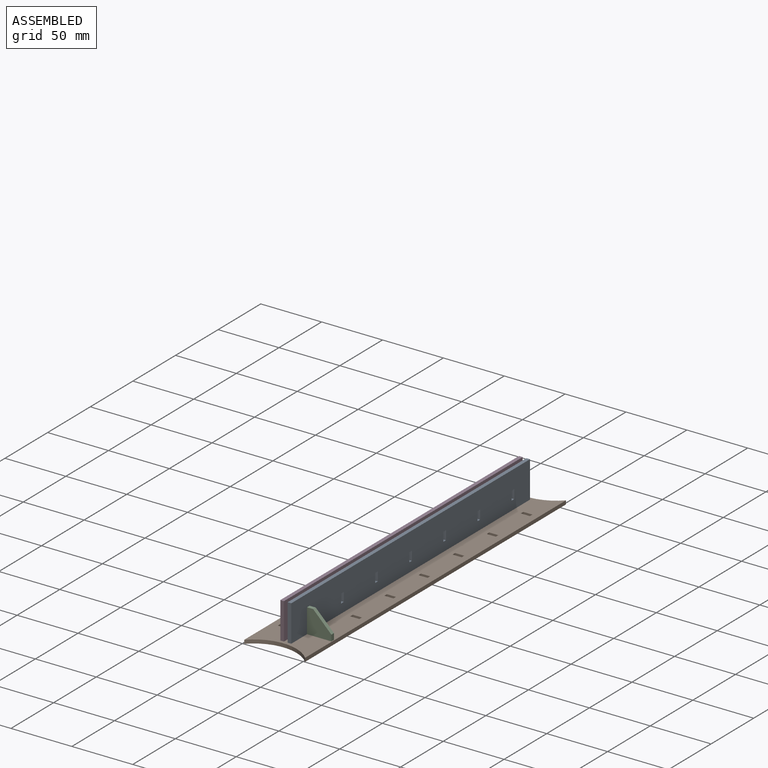
[diagram: assembled view]
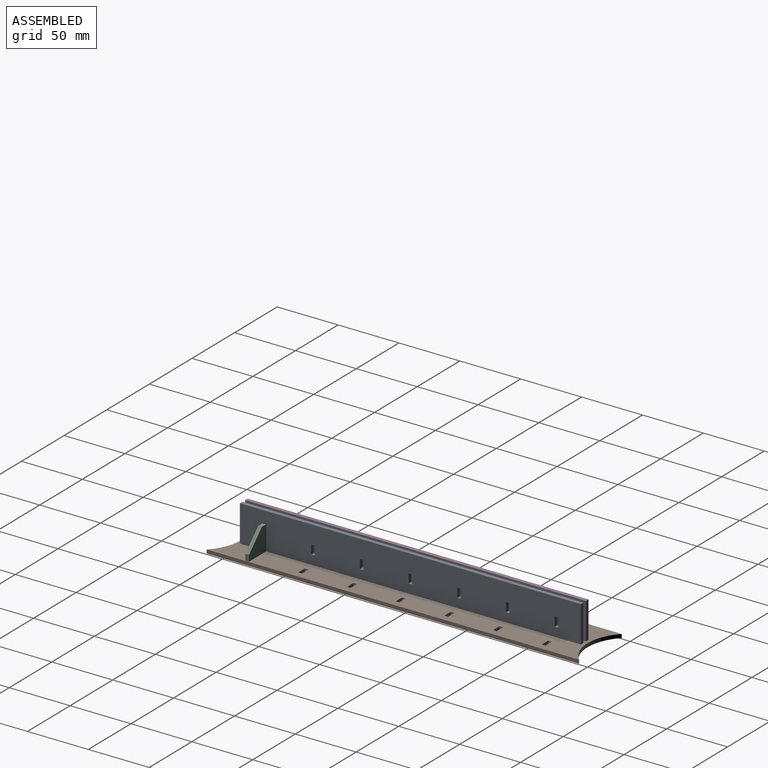
[diagram: assembled view, second angle]
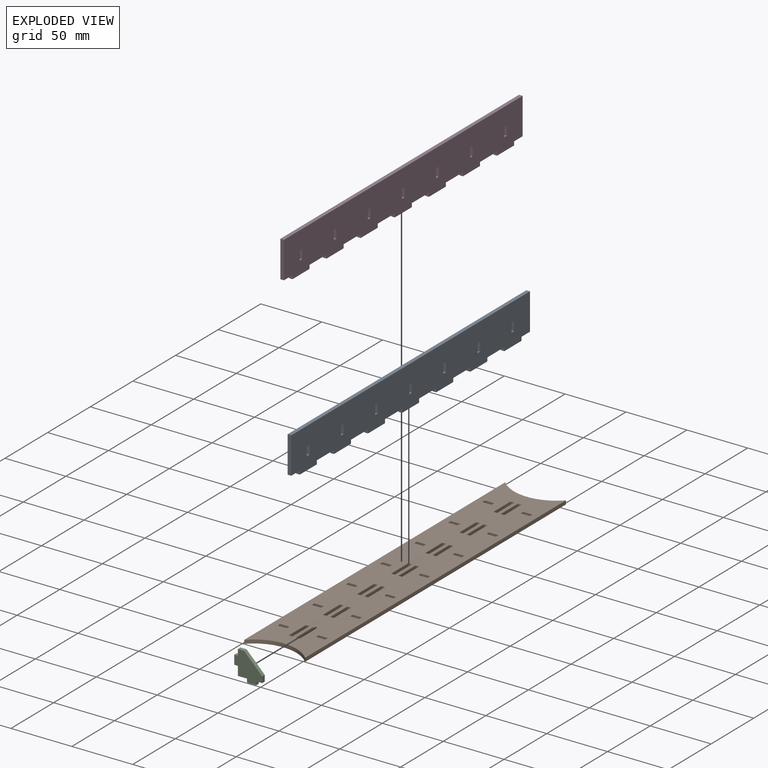
[diagram: exploded view]
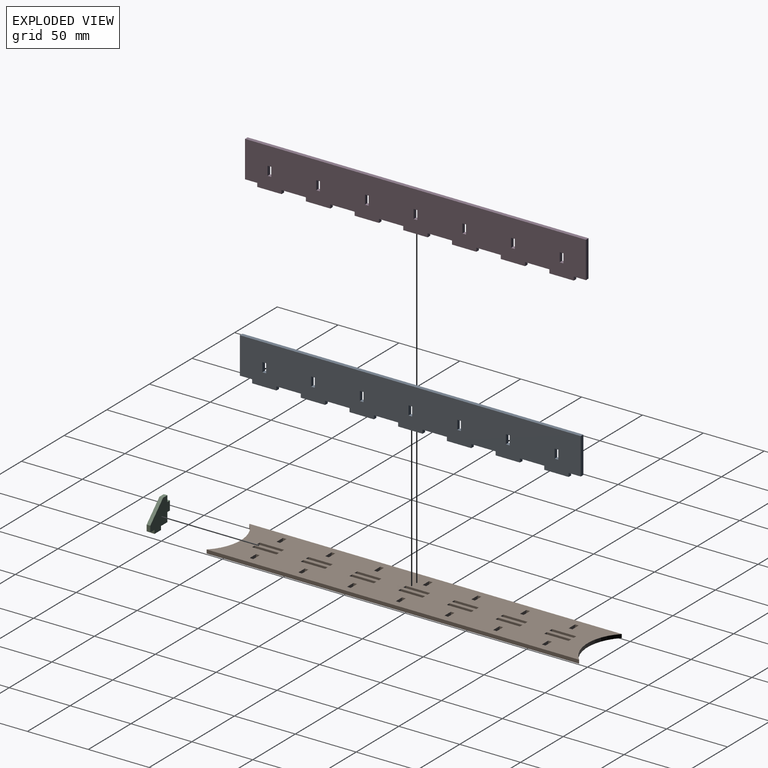
[diagram: exploded view, second angle]
ASSEMBLY  parts=4 mates=3
PART A: 62 faces, bbox 3x280x33 mm
  f0: plane 280x33mm, normal (1,0,0), area 8662.5mm2, adj f2,f3,f4,f5,f6,f7,f8,f9
  f1: plane 280x33mm, normal (-1,0,0), area 8662.5mm2, adj f2,f3,f4,f5,f6,f7,f8,f9
  f2: plane 10x3mm, normal (0,0,-1), area 30mm2, adj f0,f1,f11,f31
  f3: plane 20x3mm, normal (0,0,-1), area 60mm2, adj f0,f1,f28,f33
  f4: plane 20x3mm, normal (0,0,-1), area 60mm2, adj f0,f1,f25,f30
  f5: plane 20x3mm, normal (0,0,-1), area 60mm2, adj f0,f1,f22,f27
  f6: plane 20x3mm, normal (0,0,-1), area 60mm2, adj f0,f1,f19,f24
  f7: plane 20x3mm, normal (0,0,-1), area 60mm2, adj f0,f1,f16,f21
  f8: plane 20x3mm, normal (0,0,-1), area 60mm2, adj f0,f1,f13,f18
  f9: plane 30x3mm, normal (0,1,0), area 90mm2, adj f0,f1,f10,f12
  f10: plane 280x3mm, normal (0,0,1), area 840mm2, adj f0,f1,f9,f11
  f11: plane 30x3mm, normal (0,-1,0), area 90mm2, adj f0,f1,f2,f10
  f12: plane 10x3mm, normal (0,0,-1), area 30mm2, adj f0,f1,f9,f15
  f13: plane 3x3mm, normal (0,-1,0), area 9mm2, adj f0,f1,f8,f14
  f14: plane 20x3mm, normal (0,0,-1), area 60mm2, adj f0,f1,f13,f15
  f15: plane 3x3mm, normal (0,1,0), area 9mm2, adj f0,f1,f12,f14
  f16: plane 3x3mm, normal (0,-1,0), area 9mm2, adj f0,f1,f7,f17
  f17: plane 20x3mm, normal (0,0,-1), area 60mm2, adj f0,f1,f16,f18
  f18: plane 3x3mm, normal (0,1,0), area 9mm2, adj f0,f1,f8,f17
  f19: plane 3x3mm, normal (0,-1,0), area 9mm2, adj f0,f1,f6,f20
  f20: plane 20x3mm, normal (0,0,-1), area 60mm2, adj f0,f1,f19,f21
  f21: plane 3x3mm, normal (0,1,0), area 9mm2, adj f0,f1,f7,f20
  f22: plane 3x3mm, normal (0,-1,0), area 9mm2, adj f0,f1,f5,f23
  f23: plane 20x3mm, normal (0,0,-1), area 60mm2, adj f0,f1,f22,f24
  f24: plane 3x3mm, normal (0,1,0), area 9mm2, adj f0,f1,f6,f23
  f25: plane 3x3mm, normal (0,-1,0), area 9mm2, adj f0,f1,f4,f26
  f26: plane 20x3mm, normal (0,0,-1), area 60mm2, adj f0,f1,f25,f27
  f27: plane 3x3mm, normal (0,1,0), area 9mm2, adj f0,f1,f5,f26
  f28: plane 3x3mm, normal (0,-1,0), area 9mm2, adj f0,f1,f3,f29
  f29: plane 20x3mm, normal (0,0,-1), area 60mm2, adj f0,f1,f28,f30
  f30: plane 3x3mm, normal (0,1,0), area 9mm2, adj f0,f1,f4,f29
  f31: plane 3x3mm, normal (0,-1,0), area 9mm2, adj f0,f1,f2,f32
  f32: plane 20x3mm, normal (0,0,-1), area 60mm2, adj f0,f1,f31,f33
  f33: plane 3x3mm, normal (0,1,0), area 9mm2, adj f0,f1,f3,f32
  f34: plane 3x3mm, normal (0,0,1), area 9mm2, adj f0,f1,f35,f37
  f35: plane 7.5x3mm, normal (0,-1,0), area 22.5mm2, adj f0,f1,f34,f36
  f36: plane 3x3mm, normal (0,0,-1), area 9mm2, adj f0,f1,f35,f37
  f37: plane 7.5x3mm, normal (0,1,0), area 22.5mm2, adj f0,f1,f34,f36
  f38: plane 3x3mm, normal (0,0,1), area 9mm2, adj f0,f1,f39,f41
  f39: plane 7.5x3mm, normal (0,-1,0), area 22.5mm2, adj f0,f1,f38,f40
  f40: plane 3x3mm, normal (0,0,-1), area 9mm2, adj f0,f1,f39,f41
  f41: plane 7.5x3mm, normal (0,1,0), area 22.5mm2, adj f0,f1,f38,f40
  f42: plane 3x3mm, normal (0,0,1), area 9mm2, adj f0,f1,f43,f45
  f43: plane 7.5x3mm, normal (0,-1,0), area 22.5mm2, adj f0,f1,f42,f44
  f44: plane 3x3mm, normal (0,0,-1), area 9mm2, adj f0,f1,f43,f45
  f45: plane 7.5x3mm, normal (0,1,0), area 22.5mm2, adj f0,f1,f42,f44
  f46: plane 3x3mm, normal (0,0,1), area 9mm2, adj f0,f1,f47,f49
  f47: plane 7.5x3mm, normal (0,-1,0), area 22.5mm2, adj f0,f1,f46,f48
  f48: plane 3x3mm, normal (0,0,-1), area 9mm2, adj f0,f1,f47,f49
  f49: plane 7.5x3mm, normal (0,1,0), area 22.5mm2, adj f0,f1,f46,f48
  f50: plane 3x3mm, normal (0,0,1), area 9mm2, adj f0,f1,f51,f53
  f51: plane 7.5x3mm, normal (0,-1,0), area 22.5mm2, adj f0,f1,f50,f52
  f52: plane 3x3mm, normal (0,0,-1), area 9mm2, adj f0,f1,f51,f53
  f53: plane 7.5x3mm, normal (0,1,0), area 22.5mm2, adj f0,f1,f50,f52
  f54: plane 3x3mm, normal (0,0,1), area 9mm2, adj f0,f1,f55,f57
  f55: plane 7.5x3mm, normal (0,-1,0), area 22.5mm2, adj f0,f1,f54,f56
  f56: plane 3x3mm, normal (0,0,-1), area 9mm2, adj f0,f1,f55,f57
  f57: plane 7.5x3mm, normal (0,1,0), area 22.5mm2, adj f0,f1,f54,f56
  f58: plane 7.5x3mm, normal (0,-1,0), area 22.5mm2, adj f0,f1,f59,f61
  f59: plane 3x3mm, normal (0,0,-1), area 9mm2, adj f0,f1,f58,f60
  f60: plane 7.5x3mm, normal (0,1,0), area 22.5mm2, adj f0,f1,f59,f61
  f61: plane 3x3mm, normal (0,0,1), area 9mm2, adj f0,f1,f58,f60
PART B: 118 faces, bbox 50x306x3 mm
  f0: plane 306.01x50mm, normal (0,0,1), area 13421mm2, adj f2,f3,f4,f5,f6,f7,f8,f9
  f1: plane 306.01x50mm, normal (0,0,-1), area 13421mm2, adj f2,f3,f4,f5,f6,f7,f8,f9
  f2: plane 306.01x3mm, normal (1,0,0), area 918mm2, adj f0,f1,f116,f117
  f3: plane 306.01x3mm, normal (-1,0,0), area 918mm2, adj f0,f1,f116,f117
  f4: plane 20x3mm, normal (1,0,0), area 60mm2, adj f0,f1,f5,f7
  f5: plane 3x3mm, normal (0,1,0), area 9mm2, adj f0,f1,f4,f6
  f6: plane 20x3mm, normal (-1,0,0), area 60mm2, adj f0,f1,f5,f7
  f7: plane 3x3mm, normal (0,-1,0), area 9mm2, adj f0,f1,f4,f6
  f8: plane 3x3mm, normal (0,1,0), area 9mm2, adj f0,f1,f9,f11
  f9: plane 20x3mm, normal (-1,0,0), area 60mm2, adj f0,f1,f8,f10
  f10: plane 3x3mm, normal (0,-1,0), area 9mm2, adj f0,f1,f9,f11
  f11: plane 20x3mm, normal (1,0,0), area 60mm2, adj f0,f1,f8,f10
  f12: plane 3x3mm, normal (0,1,0), area 9mm2, adj f0,f1,f13,f15
  f13: plane 20x3mm, normal (-1,0,0), area 60mm2, adj f0,f1,f12,f14
  f14: plane 3x3mm, normal (0,-1,0), area 9mm2, adj f0,f1,f13,f15
  f15: plane 20x3mm, normal (1,0,0), area 60mm2, adj f0,f1,f12,f14
  f16: plane 3x3mm, normal (0,1,0), area 9mm2, adj f0,f1,f17,f19
  f17: plane 20x3mm, normal (-1,0,0), area 60mm2, adj f0,f1,f16,f18
  f18: plane 3x3mm, normal (0,-1,0), area 9mm2, adj f0,f1,f17,f19
  f19: plane 20x3mm, normal (1,0,0), area 60mm2, adj f0,f1,f16,f18
  f20: plane 3x3mm, normal (0,1,0), area 9mm2, adj f0,f1,f21,f23
  f21: plane 20x3mm, normal (-1,0,0), area 60mm2, adj f0,f1,f20,f22
  f22: plane 3x3mm, normal (0,-1,0), area 9mm2, adj f0,f1,f21,f23
  f23: plane 20x3mm, normal (1,0,0), area 60mm2, adj f0,f1,f20,f22
  f24: plane 3x3mm, normal (0,1,0), area 9mm2, adj f0,f1,f25,f27
  f25: plane 20x3mm, normal (-1,0,0), area 60mm2, adj f0,f1,f24,f26
  f26: plane 3x3mm, normal (0,-1,0), area 9mm2, adj f0,f1,f25,f27
  f27: plane 20x3mm, normal (1,0,0), area 60mm2, adj f0,f1,f24,f26
  f28: plane 20x3mm, normal (1,0,0), area 60mm2, adj f0,f1,f29,f31
  f29: plane 3x3mm, normal (0,1,0), area 9mm2, adj f0,f1,f28,f30
  f30: plane 20x3mm, normal (-1,0,0), area 60mm2, adj f0,f1,f29,f31
  f31: plane 3x3mm, normal (0,-1,0), area 9mm2, adj f0,f1,f28,f30
  f32: plane 20x3mm, normal (1,0,0), area 60mm2, adj f0,f1,f33,f35
  f33: plane 3x3mm, normal (0,1,0), area 9mm2, adj f0,f1,f32,f34
  f34: plane 20x3mm, normal (-1,0,0), area 60mm2, adj f0,f1,f33,f35
  f35: plane 3x3mm, normal (0,-1,0), area 9mm2, adj f0,f1,f32,f34
  f36: plane 20x3mm, normal (1,0,0), area 60mm2, adj f0,f1,f37,f39
  f37: plane 3x3mm, normal (0,1,0), area 9mm2, adj f0,f1,f36,f38
  f38: plane 20x3mm, normal (-1,0,0), area 60mm2, adj f0,f1,f37,f39
  f39: plane 3x3mm, normal (0,-1,0), area 9mm2, adj f0,f1,f36,f38
  f40: plane 20x3mm, normal (1,0,0), area 60mm2, adj f0,f1,f41,f43
  f41: plane 3x3mm, normal (0,1,0), area 9mm2, adj f0,f1,f40,f42
  f42: plane 20x3mm, normal (-1,0,0), area 60mm2, adj f0,f1,f41,f43
  f43: plane 3x3mm, normal (0,-1,0), area 9mm2, adj f0,f1,f40,f42
  f44: plane 20x3mm, normal (1,0,0), area 60mm2, adj f0,f1,f45,f47
  f45: plane 3x3mm, normal (0,1,0), area 9mm2, adj f0,f1,f44,f46
  f46: plane 20x3mm, normal (-1,0,0), area 60mm2, adj f0,f1,f45,f47
  f47: plane 3x3mm, normal (0,-1,0), area 9mm2, adj f0,f1,f44,f46
  f48: plane 20x3mm, normal (1,0,0), area 60mm2, adj f0,f1,f49,f51
  f49: plane 3x3mm, normal (0,1,0), area 9mm2, adj f0,f1,f48,f50
  f50: plane 20x3mm, normal (-1,0,0), area 60mm2, adj f0,f1,f49,f51
  f51: plane 3x3mm, normal (0,-1,0), area 9mm2, adj f0,f1,f48,f50
  f52: plane 3x3mm, normal (0,1,0), area 9mm2, adj f0,f1,f53,f55
  f53: plane 20x3mm, normal (-1,0,0), area 60mm2, adj f0,f1,f52,f54
  f54: plane 3x3mm, normal (0,-1,0), area 9mm2, adj f0,f1,f53,f55
  f55: plane 20x3mm, normal (1,0,0), area 60mm2, adj f0,f1,f52,f54
  f56: plane 3x3mm, normal (0,1,0), area 9mm2, adj f0,f1,f57,f59
  f57: plane 20x3mm, normal (-1,0,0), area 60mm2, adj f0,f1,f56,f58
  f58: plane 3x3mm, normal (0,-1,0), area 9mm2, adj f0,f1,f57,f59
  f59: plane 20x3mm, normal (1,0,0), area 60mm2, adj f0,f1,f56,f58
  f60: plane 7.5x3mm, normal (0,1,0), area 22.5mm2, adj f0,f1,f61,f63
  f61: plane 3x3mm, normal (-1,0,0), area 9mm2, adj f0,f1,f60,f62
  f62: plane 7.5x3mm, normal (0,-1,0), area 22.5mm2, adj f0,f1,f61,f63
  f63: plane 3x3mm, normal (1,0,0), area 9mm2, adj f0,f1,f60,f62
  f64: plane 3x3mm, normal (1,0,0), area 9mm2, adj f0,f1,f65,f67
  f65: plane 7.5x3mm, normal (0,1,0), area 22.5mm2, adj f0,f1,f64,f66
  f66: plane 3x3mm, normal (-1,0,0), area 9mm2, adj f0,f1,f65,f67
  f67: plane 7.5x3mm, normal (0,-1,0), area 22.5mm2, adj f0,f1,f64,f66
  f68: plane 7.5x3mm, normal (0,-1,0), area 22.5mm2, adj f0,f1,f69,f71
  f69: plane 3x3mm, normal (1,0,0), area 9mm2, adj f0,f1,f68,f70
  f70: plane 7.5x3mm, normal (0,1,0), area 22.5mm2, adj f0,f1,f69,f71
  f71: plane 3x3mm, normal (-1,0,0), area 9mm2, adj f0,f1,f68,f70
  f72: plane 7.5x3mm, normal (0,-1,0), area 22.5mm2, adj f0,f1,f73,f75
  f73: plane 3x3mm, normal (1,0,0), area 9mm2, adj f0,f1,f72,f74
  f74: plane 7.5x3mm, normal (0,1,0), area 22.5mm2, adj f0,f1,f73,f75
  f75: plane 3x3mm, normal (-1,0,0), area 9mm2, adj f0,f1,f72,f74
  f76: plane 3x3mm, normal (1,0,0), area 9mm2, adj f0,f1,f77,f79
  f77: plane 7.5x3mm, normal (0,1,0), area 22.5mm2, adj f0,f1,f76,f78
  f78: plane 3x3mm, normal (-1,0,0), area 9mm2, adj f0,f1,f77,f79
  f79: plane 7.5x3mm, normal (0,-1,0), area 22.5mm2, adj f0,f1,f76,f78
  f80: plane 7.5x3mm, normal (0,-1,0), area 22.5mm2, adj f0,f1,f81,f83
  f81: plane 3x3mm, normal (1,0,0), area 9mm2, adj f0,f1,f80,f82
  f82: plane 7.5x3mm, normal (0,1,0), area 22.5mm2, adj f0,f1,f81,f83
  f83: plane 3x3mm, normal (-1,0,0), area 9mm2, adj f0,f1,f80,f82
  f84: plane 3x3mm, normal (-1,0,0), area 9mm2, adj f0,f1,f85,f87
  f85: plane 7.5x3mm, normal (0,-1,0), area 22.5mm2, adj f0,f1,f84,f86
  f86: plane 3x3mm, normal (1,0,0), area 9mm2, adj f0,f1,f85,f87
  f87: plane 7.5x3mm, normal (0,1,0), area 22.5mm2, adj f0,f1,f84,f86
  f88: plane 3x3mm, normal (-1,0,0), area 9mm2, adj f0,f1,f89,f91
  f89: plane 7.5x3mm, normal (0,-1,0), area 22.5mm2, adj f0,f1,f88,f90
  f90: plane 3x3mm, normal (1,0,0), area 9mm2, adj f0,f1,f89,f91
  f91: plane 7.5x3mm, normal (0,1,0), area 22.5mm2, adj f0,f1,f88,f90
  f92: plane 3x3mm, normal (-1,0,0), area 9mm2, adj f0,f1,f93,f95
  f93: plane 7.5x3mm, normal (0,-1,0), area 22.5mm2, adj f0,f1,f92,f94
  f94: plane 3x3mm, normal (1,0,0), area 9mm2, adj f0,f1,f93,f95
  f95: plane 7.5x3mm, normal (0,1,0), area 22.5mm2, adj f0,f1,f92,f94
  f96: plane 3x3mm, normal (-1,0,0), area 9mm2, adj f0,f1,f97,f99
  f97: plane 7.5x3mm, normal (0,-1,0), area 22.5mm2, adj f0,f1,f96,f98
  f98: plane 3x3mm, normal (1,0,0), area 9mm2, adj f0,f1,f97,f99
  f99: plane 7.5x3mm, normal (0,1,0), area 22.5mm2, adj f0,f1,f96,f98
  f100: plane 3x3mm, normal (-1,0,0), area 9mm2, adj f0,f1,f101,f103
  f101: plane 7.5x3mm, normal (0,-1,0), area 22.5mm2, adj f0,f1,f100,f102
  f102: plane 3x3mm, normal (1,0,0), area 9mm2, adj f0,f1,f101,f103
  f103: plane 7.5x3mm, normal (0,1,0), area 22.5mm2, adj f0,f1,f100,f102
  f104: plane 3x3mm, normal (-1,0,0), area 9mm2, adj f0,f1,f105,f107
  f105: plane 7.5x3mm, normal (0,-1,0), area 22.5mm2, adj f0,f1,f104,f106
  f106: plane 3x3mm, normal (1,0,0), area 9mm2, adj f0,f1,f105,f107
  f107: plane 7.5x3mm, normal (0,1,0), area 22.5mm2, adj f0,f1,f104,f106
  f108: plane 3x3mm, normal (1,0,0), area 9mm2, adj f0,f1,f109,f111
  f109: plane 7.5x3mm, normal (0,1,0), area 22.5mm2, adj f0,f1,f108,f110
  f110: plane 3x3mm, normal (-1,0,0), area 9mm2, adj f0,f1,f109,f111
  f111: plane 7.5x3mm, normal (0,-1,0), area 22.5mm2, adj f0,f1,f108,f110
  f112: plane 3x3mm, normal (1,0,0), area 9mm2, adj f0,f1,f113,f115
  f113: plane 7.5x3mm, normal (0,1,0), area 22.5mm2, adj f0,f1,f112,f114
  f114: plane 3x3mm, normal (-1,0,0), area 9mm2, adj f0,f1,f113,f115
  f115: plane 7.5x3mm, normal (0,-1,0), area 22.5mm2, adj f0,f1,f112,f114
  f116: cylinder r=35mm len=50mm, axis (0,0,1), area 167.1mm2, adj f0,f1,f2,f3
  f117: cylinder r=35mm len=50mm, axis (0,0,1), area 167.1mm2, adj f0,f1,f2,f3
PART C: 15 faces, bbox 23x3x23 mm
  f0: plane 5x3mm, normal (1,0,0), area 15mm2, adj f1,f12,f13,f14
  f1: plane 15x15mm, normal (0.71,0,0.71), area 63.6mm2, adj f0,f2,f13,f14
  f2: plane 5x3mm, normal (0,0,1), area 15mm2, adj f1,f3,f13,f14
  f3: plane 5x3mm, normal (-1,0,0), area 15mm2, adj f2,f4,f13,f14
  f4: plane 3x3mm, normal (0,0,1), area 9mm2, adj f3,f5,f13,f14
  f5: plane 7.5x3mm, normal (-1,0,0), area 22.5mm2, adj f4,f6,f13,f14
  f6: plane 3x3mm, normal (0,0,-1), area 9mm2, adj f5,f7,f13,f14
  f7: plane 7.5x3mm, normal (-1,0,0), area 22.5mm2, adj f6,f8,f13,f14
  f8: plane 7.5x3mm, normal (0,0,-1), area 22.5mm2, adj f7,f9,f13,f14
  f9: plane 3x3mm, normal (-1,0,0), area 9mm2, adj f8,f10,f13,f14
  f10: plane 7.5x3mm, normal (0,0,-1), area 22.5mm2, adj f9,f11,f13,f14
  f11: plane 3x3mm, normal (1,0,0), area 9mm2, adj f10,f12,f13,f14
  f12: plane 5x3mm, normal (0,0,-1), area 15mm2, adj f0,f11,f13,f14
  f13: plane 23x23mm, normal (0,-1,0), area 332.5mm2, adj f0,f1,f2,f3,f4,f5,f6,f7
  f14: plane 23x23mm, normal (0,1,0), area 332.5mm2, adj f0,f1,f2,f3,f4,f5,f6,f7
PART D: same geometry as A
PLACE A t=(-66.38,-4.89,-48.87)mm
PLACE B t=(-67.88,-4.89,-66.87)mm
PLACE C t=(-63.38,-123.39,-63.87)mm
PLACE D t=(-72.38,-4.89,-48.87)mm
MATE fastened B.f1 <-> D.f14  axis (0,0,-1) through (-70.88,105.11,-66.87)mm
MATE fastened C.f10 <-> B.f1  axis (0,0,-1) through (-48.38,-124.89,-66.87)mm
MATE fastened B.f1 <-> A.f32  axis (0,0,-1) through (-64.88,-114.89,-66.87)mm
